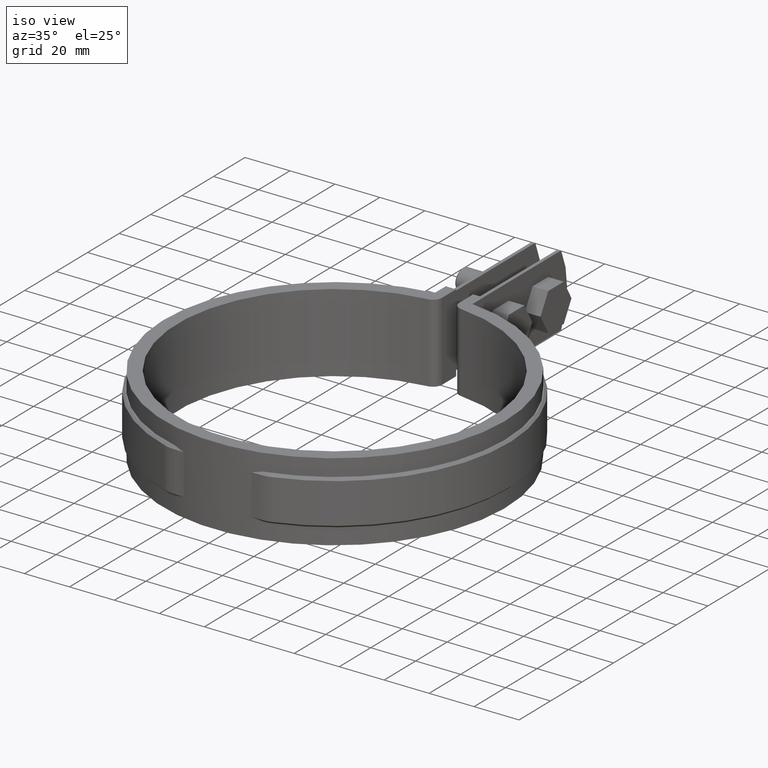
[diagram: clean part render]
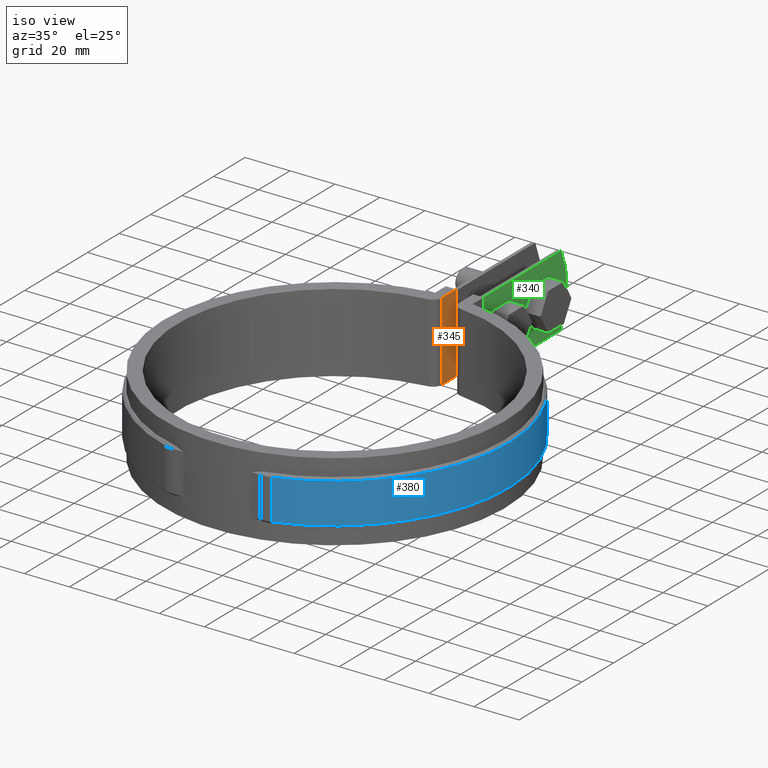
[diagram: same view with three faces highlighted in distinct colors, each labeled with its STEP entity id]
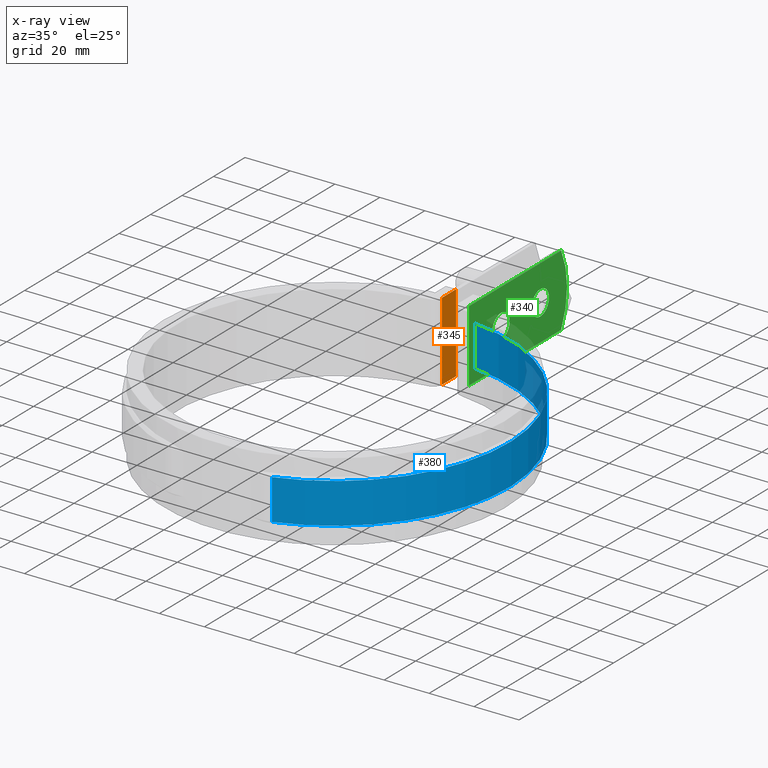
[diagram: x-ray of the same camera — body ghosted, the three highlighted faces saturated]
A machine part, iso view with three faces highlighted in distinct colors.
The next image is the same camera in x-ray (body ghosted, the three faces saturated) — at least one of them is partly hidden behind the body in this view.
Their STEP definitions:

[orange] entity #345 — the highlighted planar face has unit normal (1, -0, 0).
#345 = ADVANCED_FACE( '', ( #544 ), #545, .T. );
#544 = FACE_OUTER_BOUND( '', #1257, .T. );
#545 = PLANE( '', #1258 );
#1257 = EDGE_LOOP( '', ( #2893, #2894, #2895, #2896 ) );
#1258 = AXIS2_PLACEMENT_3D( '', #2897, #2898, #2899 );
#2893 = ORIENTED_EDGE( '', *, *, #4696, .F. );
#2894 = ORIENTED_EDGE( '', *, *, #4697, .F. );
#2895 = ORIENTED_EDGE( '', *, *, #4698, .T. );
#2896 = ORIENTED_EDGE( '', *, *, #4689, .T. );
#2897 = CARTESIAN_POINT( '', ( -3.80000000000000, 73.5877707231304, -33.5000000000000 ) );
#2898 = DIRECTION( '', ( 1.00000000000000, -6.17161236645595E-017, 0.000000000000000 ) );
#2899 = DIRECTION( '', ( -6.17161236645595E-017, -1.00000000000000, 0.000000000000000 ) );
#4689 = EDGE_CURVE( '', #5133, #5130, #5134, .T. );
#4696 = EDGE_CURVE( '', #5146, #5130, #5147, .T. );
#4697 = EDGE_CURVE( '', #5148, #5146, #5149, .T. );
#4698 = EDGE_CURVE( '', #5148, #5133, #5150, .T. );
#5130 = VERTEX_POINT( '', #6697 );
#5133 = VERTEX_POINT( '', #6701 );
#5134 = LINE( '', #6702, #6703 );
#5146 = VERTEX_POINT( '', #6721 );
#5147 = LINE( '', #6722, #6723 );
#5148 = VERTEX_POINT( '', #6724 );
#5149 = LINE( '', #6725, #6726 );
#5150 = LINE( '', #6727, #6728 );
#6697 = CARTESIAN_POINT( '', ( -3.80000000000000, 82.5000000000000, 1.50000000000000 ) );
#6701 = CARTESIAN_POINT( '', ( -3.80000000000000, 82.5000000000000, -33.5000000000000 ) );
#6702 = CARTESIAN_POINT( '', ( -3.80000000000000, 82.5000000000000, -33.5000000000000 ) );
#6703 = VECTOR( '', #8521, 1000.00000000000 );
#6721 = CARTESIAN_POINT( '', ( -3.80000000000000, 73.5877707231304, 1.50000000000000 ) );
#6722 = CARTESIAN_POINT( '', ( -3.80000000000000, 73.5877707231304, 1.50000000000000 ) );
#6723 = VECTOR( '', #8528, 1000.00000000000 );
#6724 = CARTESIAN_POINT( '', ( -3.80000000000000, 73.5877707231304, -33.5000000000000 ) );
#6725 = CARTESIAN_POINT( '', ( -3.80000000000000, 73.5877707231304, -33.5000000000000 ) );
#6726 = VECTOR( '', #8529, 1000.00000000000 );
#6727 = CARTESIAN_POINT( '', ( -3.80000000000000, 73.5877707231304, -33.5000000000000 ) );
#6728 = VECTOR( '', #8530, 1000.00000000000 );
#8521 = DIRECTION( '', ( 0.000000000000000, 0.000000000000000, 1.00000000000000 ) );
#8528 = DIRECTION( '', ( 6.17161236645595E-017, 1.00000000000000, 0.000000000000000 ) );
#8529 = DIRECTION( '', ( 0.000000000000000, 0.000000000000000, 1.00000000000000 ) );
#8530 = DIRECTION( '', ( 6.17161236645595E-017, 1.00000000000000, 0.000000000000000 ) );

[blue] entity #380 — the highlighted cylindrical surface (partial cylindrical patch) has radius 77.5 mm, axis along (0, 0, -1).
#380 = ADVANCED_FACE( '', ( #616 ), #617, .T. );
#616 = FACE_OUTER_BOUND( '', #1702, .T. );
#617 = CYLINDRICAL_SURFACE( '', #1703, 77.5000000000000 );
#1702 = EDGE_LOOP( '', ( #3948, #3949, #3950, #3951 ) );
#1703 = AXIS2_PLACEMENT_3D( '', #3952, #3953, #3954 );
#3948 = ORIENTED_EDGE( '', *, *, #4820, .T. );
#3949 = ORIENTED_EDGE( '', *, *, #4821, .T. );
#3950 = ORIENTED_EDGE( '', *, *, #4822, .F. );
#3951 = ORIENTED_EDGE( '', *, *, #4823, .T. );
#3952 = CARTESIAN_POINT( '', ( 0.000000000000000, 0.000000000000000, -26.0000000000000 ) );
#3953 = DIRECTION( '', ( 0.000000000000000, 0.000000000000000, -1.00000000000000 ) );
#3954 = DIRECTION( '', ( -0.306098023515345, 0.952000000000000, 0.000000000000000 ) );
#4820 = EDGE_CURVE( '', #5356, #5357, #5358, .T. );
#4821 = EDGE_CURVE( '', #5357, #5359, #5360, .T. );
#4822 = EDGE_CURVE( '', #5361, #5359, #5362, .T. );
#4823 = EDGE_CURVE( '', #5361, #5356, #5363, .F. );
#5356 = VERTEX_POINT( '', #7900 );
#5357 = VERTEX_POINT( '', #7901 );
#5358 = LINE( '', #7902, #7903 );
#5359 = VERTEX_POINT( '', #7904 );
#5360 = CIRCLE( '', #7905, 77.5000000000000 );
#5361 = VERTEX_POINT( '', #7906 );
#5362 = LINE( '', #7907, #7908 );
#5363 = CIRCLE( '', #7909, 77.5000000000000 );
#7900 = CARTESIAN_POINT( '', ( 8.40000000000000, 77.0434293110061, -25.0000000000000 ) );
#7901 = CARTESIAN_POINT( '', ( 8.40000000000000, 77.0434293110061, -7.00000000000000 ) );
#7902 = CARTESIAN_POINT( '', ( 8.40000000000000, 77.0434293110061, -26.0000000000000 ) );
#7903 = VECTOR( '', #8694, 1000.00000000000 );
#7904 = CARTESIAN_POINT( '', ( 23.7225968224392, -73.7800000000000, -7.00000000000000 ) );
#7905 = AXIS2_PLACEMENT_3D( '', #8695, #8696, #8697 );
#7906 = CARTESIAN_POINT( '', ( 23.7225968224392, -73.7800000000000, -25.0000000000000 ) );
#7907 = CARTESIAN_POINT( '', ( 23.7225968224392, -73.7800000000000, -26.0000000000000 ) );
#7908 = VECTOR( '', #8698, 1000.00000000000 );
#7909 = AXIS2_PLACEMENT_3D( '', #8699, #8700, #8701 );
#8694 = DIRECTION( '', ( 0.000000000000000, 0.000000000000000, 1.00000000000000 ) );
#8695 = CARTESIAN_POINT( '', ( 0.000000000000000, 0.000000000000000, -7.00000000000000 ) );
#8696 = DIRECTION( '', ( 0.000000000000000, 0.000000000000000, -1.00000000000000 ) );
#8697 = DIRECTION( '', ( -1.00000000000000, 0.000000000000000, 0.000000000000000 ) );
#8698 = DIRECTION( '', ( 0.000000000000000, 0.000000000000000, 1.00000000000000 ) );
#8699 = CARTESIAN_POINT( '', ( 0.000000000000000, 0.000000000000000, -25.0000000000000 ) );
#8700 = DIRECTION( '', ( 0.000000000000000, 0.000000000000000, -1.00000000000000 ) );
#8701 = DIRECTION( '', ( -1.00000000000000, 0.000000000000000, 0.000000000000000 ) );

[green] entity #340 — the highlighted planar face has unit normal (1, 0, 0).
#340 = ADVANCED_FACE( '', ( #529, #530, #531 ), #532, .T. );
#529 = FACE_BOUND( '', #1242, .T. );
#530 = FACE_OUTER_BOUND( '', #1243, .T. );
#531 = FACE_BOUND( '', #1244, .T. );
#532 = PLANE( '', #1245 );
#1242 = EDGE_LOOP( '', ( #2856 ) );
#1243 = EDGE_LOOP( '', ( #2857, #2858, #2859, #2860 ) );
#1244 = EDGE_LOOP( '', ( #2861 ) );
#1245 = AXIS2_PLACEMENT_3D( '', #2862, #2863, #2864 );
#2856 = ORIENTED_EDGE( '', *, *, #4685, .F. );
#2857 = ORIENTED_EDGE( '', *, *, #4677, .T. );
#2858 = ORIENTED_EDGE( '', *, *, #4667, .T. );
#2859 = ORIENTED_EDGE( '', *, *, #4622, .F. );
#2860 = ORIENTED_EDGE( '', *, *, #4686, .T. );
#2861 = ORIENTED_EDGE( '', *, *, #4687, .F. );
#2862 = CARTESIAN_POINT( '', ( 6.50000000000000, 138.297380707447, 4.33680868994202E-016 ) );
#2863 = DIRECTION( '', ( 1.00000000000000, 6.02334540269725E-017, 0.000000000000000 ) );
#2864 = DIRECTION( '', ( 6.02334540269725E-017, -1.00000000000000, 0.000000000000000 ) );
#4622 = EDGE_CURVE( '', #5020, #5022, #5023, .T. );
#4667 = EDGE_CURVE( '', #5098, #5022, #5099, .F. );
#4677 = EDGE_CURVE( '', #5112, #5098, #5113, .T. );
#4685 = EDGE_CURVE( '', #5125, #5125, #5126, .T. );
#4686 = EDGE_CURVE( '', #5020, #5112, #5127, .T. );
#4687 = EDGE_CURVE( '', #5128, #5128, #5129, .T. );
#5020 = VERTEX_POINT( '', #5670 );
#5022 = VERTEX_POINT( '', #5673 );
#5023 = LINE( '', #5674, #5675 );
#5098 = VERTEX_POINT( '', #6655 );
#5099 = LINE( '', #6656, #6657 );
#5112 = VERTEX_POINT( '', #6675 );
#5113 = LINE( '', #6676, #6677 );
#5125 = VERTEX_POINT( '', #6692 );
#5126 = CIRCLE( '', #6693, 5.50000000000000 );
#5127 = CIRCLE( '', #6694, 36.0000000000000 );
#5128 = VERTEX_POINT( '', #6695 );
#5129 = CIRCLE( '', #6696, 5.50000000000000 );
#5670 = CARTESIAN_POINT( '', ( 6.50000000000000, 134.546411700641, -32.0000000000000 ) );
#5673 = CARTESIAN_POINT( '', ( 6.50000000000000, 75.9687435726036, -32.0000000000000 ) );
#5674 = CARTESIAN_POINT( '', ( 6.50000000000000, 138.297380707447, -32.0000000000000 ) );
#5675 = VECTOR( '', #8440, 1000.00000000000 );
#6655 = CARTESIAN_POINT( '', ( 6.50000000000000, 75.9687435726036, 4.33680868994202E-016 ) );
#6656 = CARTESIAN_POINT( '', ( 6.50000000000000, 75.9687435726036, -32.0000000000000 ) );
#6657 = VECTOR( '', #8477, 1000.00000000000 );
#6675 = CARTESIAN_POINT( '', ( 6.50000000000000, 134.546411700641, -4.33680868994202E-016 ) );
#6676 = CARTESIAN_POINT( '', ( 6.50000000000000, 138.297380707447, 4.33680868994202E-016 ) );
#6677 = VECTOR( '', #8495, 1000.00000000000 );
#6692 = CARTESIAN_POINT( '', ( 6.50000000000000, 126.797380707447, -16.0000000000000 ) );
#6693 = AXIS2_PLACEMENT_3D( '', #8511, #8512, #8513 );
#6694 = AXIS2_PLACEMENT_3D( '', #8514, #8515, #8516 );
#6695 = CARTESIAN_POINT( '', ( 6.50000000000000, 101.797380707447, -16.0000000000000 ) );
#6696 = AXIS2_PLACEMENT_3D( '', #8517, #8518, #8519 );
#8440 = DIRECTION( '', ( 6.02334540269725E-017, -1.00000000000000, 0.000000000000000 ) );
#8477 = DIRECTION( '', ( 0.000000000000000, 0.000000000000000, 1.00000000000000 ) );
#8495 = DIRECTION( '', ( 6.02334540269725E-017, -1.00000000000000, 0.000000000000000 ) );
#8511 = CARTESIAN_POINT( '', ( 6.50000000000000, 121.297380707447, -16.0000000000000 ) );
#8512 = DIRECTION( '', ( 1.00000000000000, 6.02334540269725E-017, 0.000000000000000 ) );
#8513 = DIRECTION( '', ( -6.02334540269725E-017, 1.00000000000000, 0.000000000000000 ) );
#8514 = CARTESIAN_POINT( '', ( 6.50000000000001, 102.297380707447, -16.0000000000000 ) );
#8515 = DIRECTION( '', ( 1.00000000000000, 6.02334540269725E-017, 0.000000000000000 ) );
#8516 = DIRECTION( '', ( -6.02334540269725E-017, 1.00000000000000, 0.000000000000000 ) );
#8517 = CARTESIAN_POINT( '', ( 6.50000000000000, 96.2973807074469, -16.0000000000000 ) );
#8518 = DIRECTION( '', ( 1.00000000000000, 6.02334540269725E-017, 0.000000000000000 ) );
#8519 = DIRECTION( '', ( -6.02334540269725E-017, 1.00000000000000, 0.000000000000000 ) );